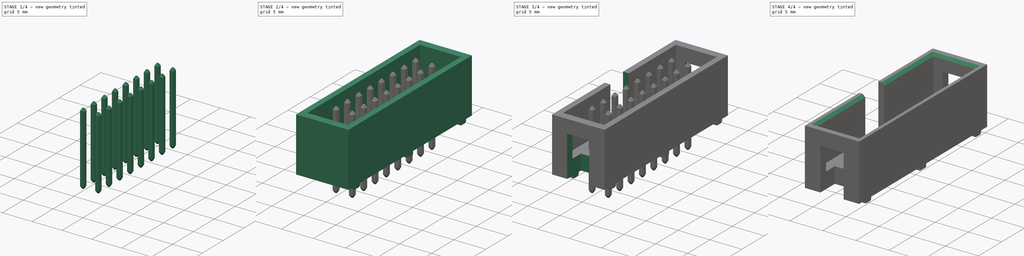
[diagram: build sequence overview — one tinted view per stage of 4, left to right]
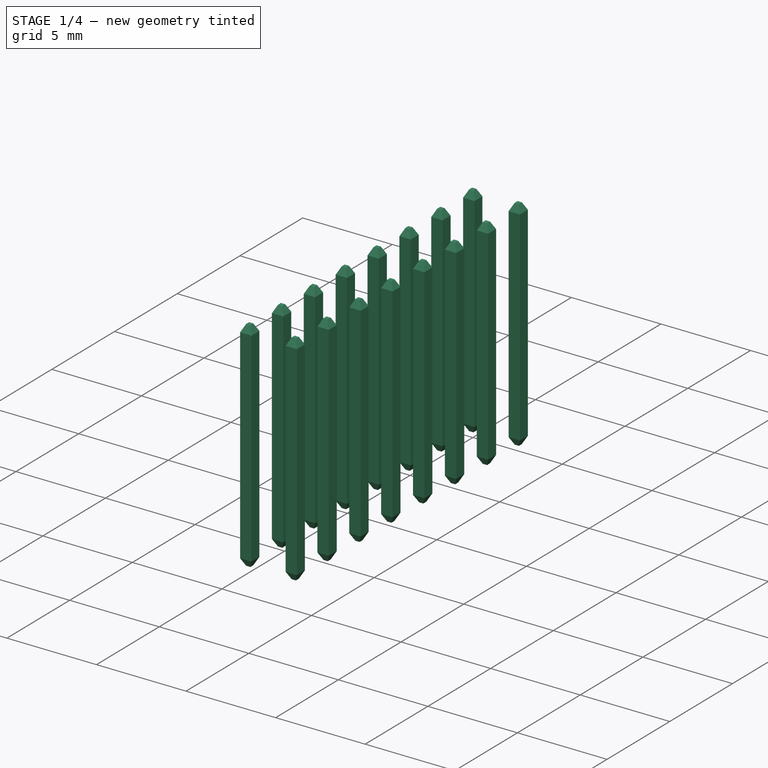
[diagram: stage 1 of 4 — iso view after this stage's code; geometry added in this stage tinted green]
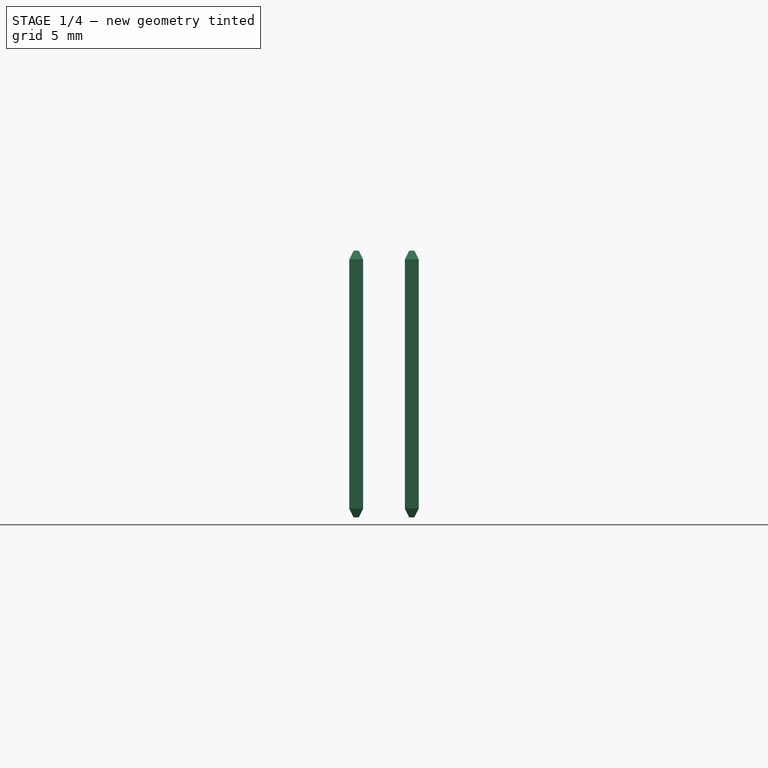
[diagram: stage 1 of 4 — front view after this stage's code; geometry added in this stage tinted green]
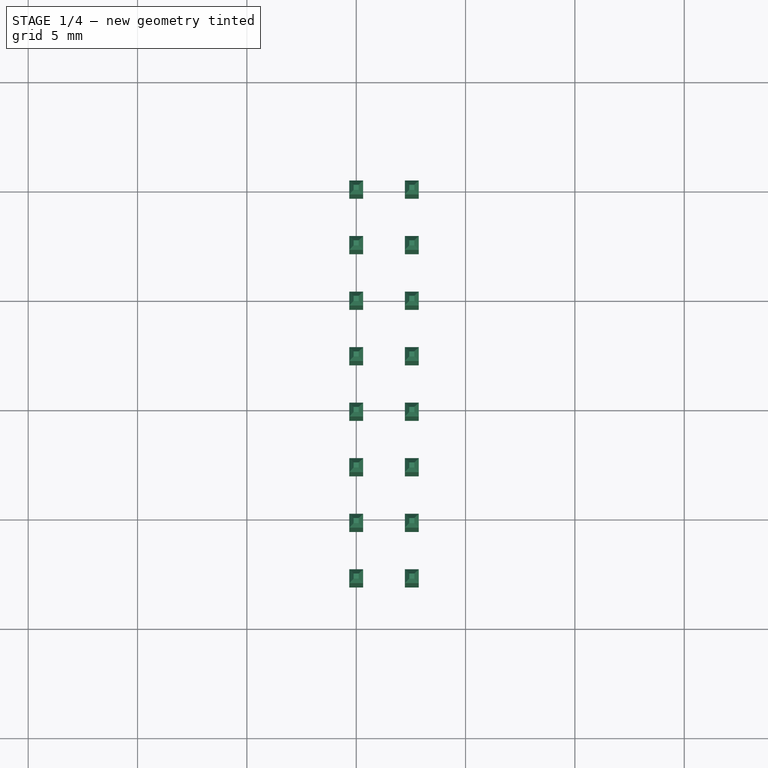
[diagram: stage 1 of 4 — top view after this stage's code; geometry added in this stage tinted green]
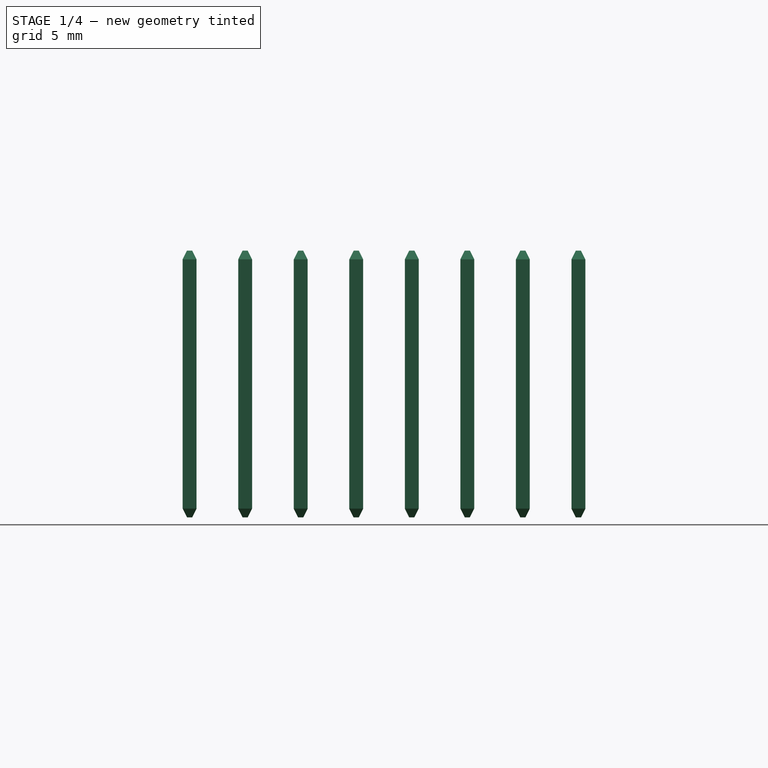
[diagram: stage 1 of 4 — right view after this stage's code; geometry added in this stage tinted green]
FCSTD DOCUMENT  (FreeCAD 1.0R38641 +468 (Git))
Label: XG4C-xx31-1
License: All rights reserved
objects: Sketcher::SketchObject×7, PartDesign::Pocket×5, PartDesign::Plane×3, PartDesign::Body×3, PartDesign::Pad×2, PartDesign::Chamfer×2, Spreadsheet::Sheet×1, PartDesign::Line×1, PartDesign::Mirrored×1, Part::FeaturePython×1, PartDesign::FeatureBase×1, Part::Cut×1
note: 54 computed .brp shape members not serialized (recipe doc carries the construction recipe); baked Part::Feature solids carry a one-line shape summary decoded from their .brp

FEATURE [PartDesign::Body] Body
  AllowCompound = false
  Group = -> [DatumLine,DatumPlane,DatumPlane001,DatumPlane002,Sketch001,Pad,Sketch002,Pocket,Sketch003,Pocket001,Sketch004,Pocket002,Mirrored,Sketch005,Pocket003,Sketch,Pocket004,Chamfer]
  Origin = -> Origin
  Tip = -> Chamfer
FEATURE [Sketcher::SketchObject] Sketch006
  ArcFitTolerance = 1e-06
  AttachmentSupport = -> [XY_Plane001]
  FullyConstrained = true
  MakeInternals = false
  MapMode = 5
  sketch-geometry (4):
    g0: LineSegment StartX=-0.3175 StartY=0.3175 StartZ=0 EndX=-0.3175 EndY=-0.3175 EndZ=0
    g1: LineSegment StartX=-0.3175 StartY=-0.3175 StartZ=0 EndX=0.3175 EndY=-0.3175 EndZ=0
    g2: LineSegment StartX=0.3175 StartY=-0.3175 StartZ=0 EndX=0.3175 EndY=0.3175 EndZ=0
    g3: LineSegment StartX=0.3175 StartY=0.3175 StartZ=0 EndX=-0.3175 EndY=0.3175 EndZ=0
  constraints (11):
    c: Coincident(g0,g1)
    c: Coincident(g1,g2)
    c: Coincident(g2,g3)
    c: Coincident(g3,g0)
    c: Vertical(g0)
    c: Vertical(g2)
    c: Horizontal(g1)
    c: Horizontal(g3)
    c: Equal(g3,g2)
    c: Distance(g3,g3) = 0.635
    c: Symmetric(g2,g0,g-1)
FEATURE [PartDesign::Pad] Pad001
  Direction = (0,0,1)
  Length = 9
  Length2 = 3.2
  Profile = -> Sketch006
  ReferenceAxis = -> Sketch006 [N_Axis]
  Suppressed = false
  Type = 4
FEATURE [PartDesign::Chamfer] Chamfer002
  Angle = 45
  Base = -> Pad001 [Edge7,Edge10,Edge12,Edge4,Edge6,Edge9,Edge11,Edge3]
  BaseFeature = -> Pad001
  ChamferType = 1
  FlipDirection = false
  Size = 0.4
  Size2 = 0.2
  SupportTransform = false
  Suppressed = false
  UseAllEdges = false
FEATURE [PartDesign::Body] Body001
  AllowCompound = false
  Group = -> [Sketch006,Pad001,Chamfer002]
  Origin = -> Origin001
  Tip = -> Chamfer002
FEATURE [Part::FeaturePython] Array  label="Pins"  # Draft array (typed FeaturePython)
  Angle = 360
  ArrayType = 0
  Axis = (0,0,1)
  Base = -> Body001
  Center = (0,0,0)
  Count = 16
  Fuse = false
  IntervalAxis = (0,0,0)
  IntervalX = (2.54,0,0)
  IntervalY = (0,-2.54,0)
  IntervalZ = (0,0,100)
  NumberCircles = 3
  NumberPolar = 5
  NumberX = 2
  NumberY = 8
  NumberZ = 1
  RadialDistance = 50
  Symmetry = 1
  TangentialDistance = 25
  expr: .IntervalX.x = <<Master>>.pin_pitch
  expr: .IntervalY.y = -<<Master>>.pin_pitch
  expr: NumberY = <<Master>>.pins_row
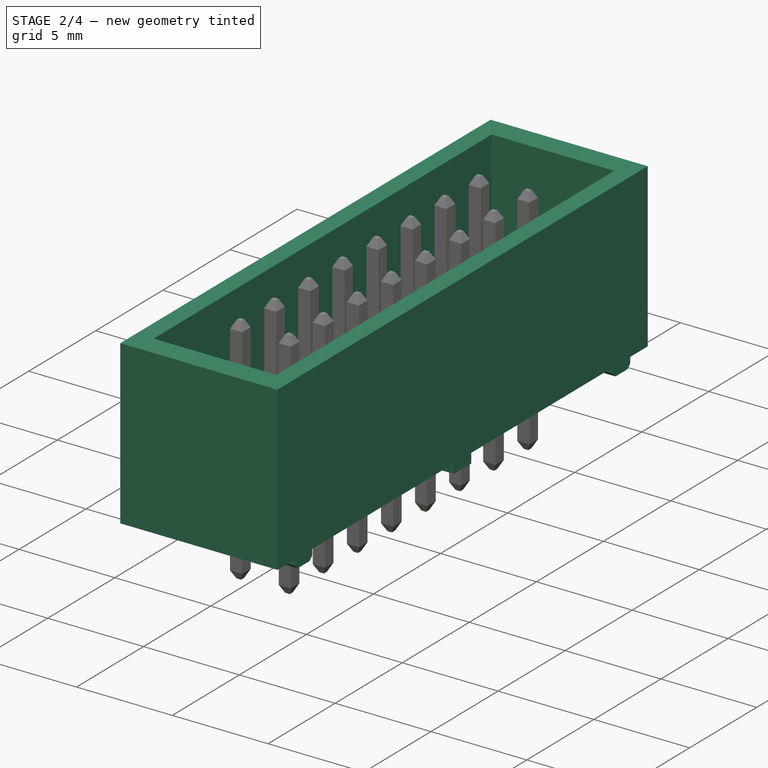
[diagram: stage 2 of 4 — iso view after this stage's code; geometry added in this stage tinted green]
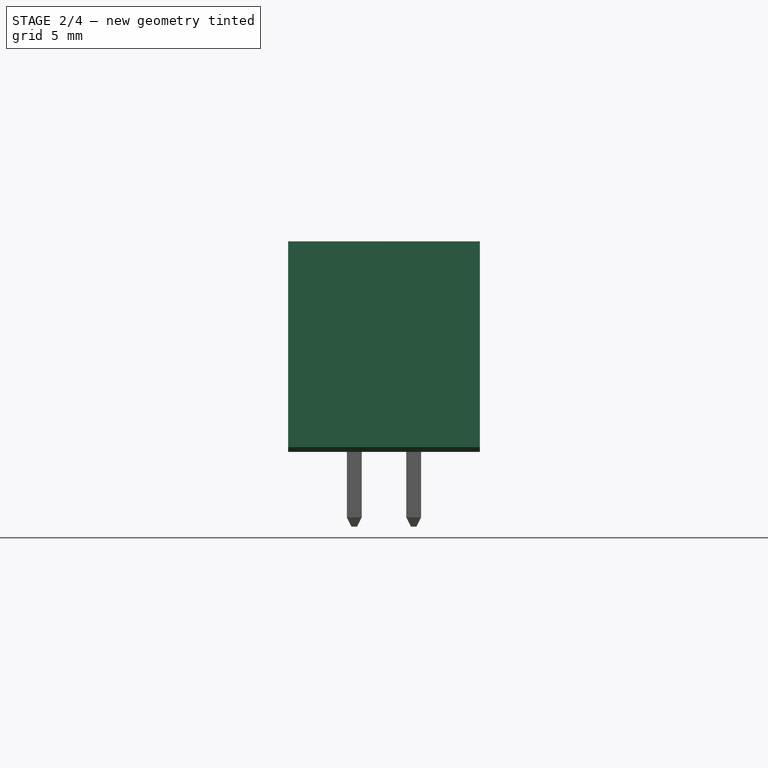
[diagram: stage 2 of 4 — front view after this stage's code; geometry added in this stage tinted green]
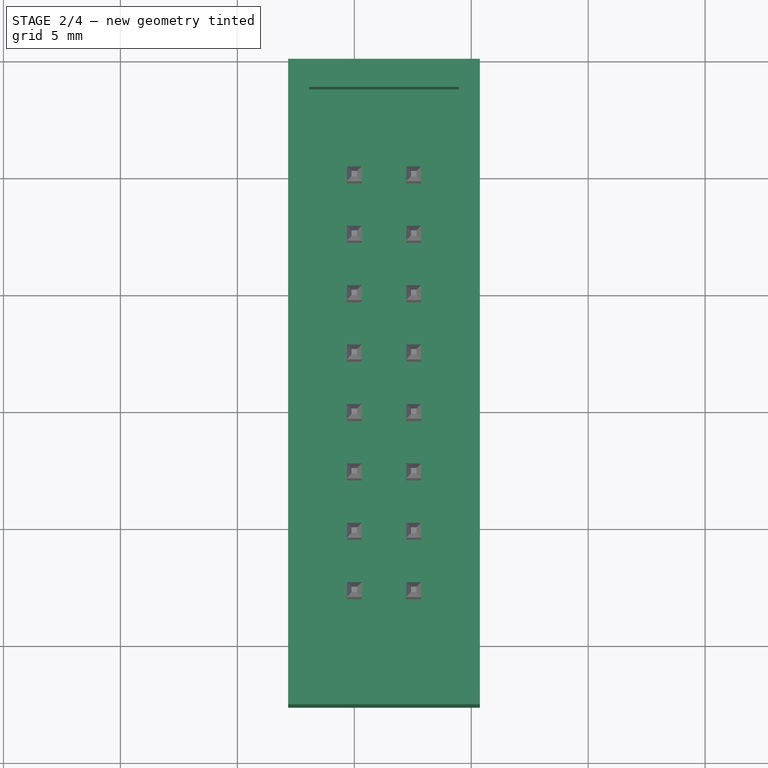
[diagram: stage 2 of 4 — top view after this stage's code; geometry added in this stage tinted green]
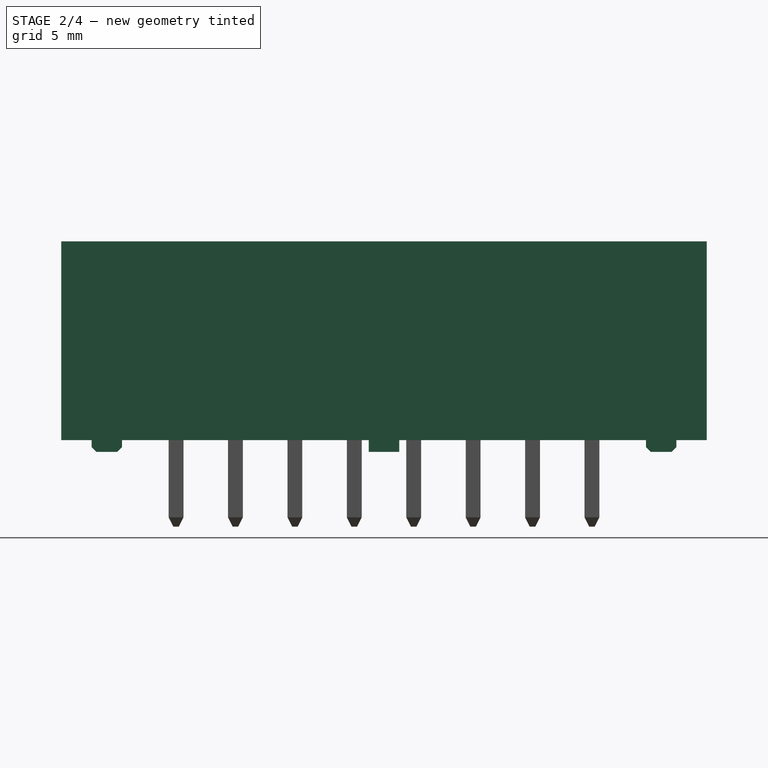
[diagram: stage 2 of 4 — right view after this stage's code; geometry added in this stage tinted green]
FEATURE [Spreadsheet::Sheet] Spreadsheet  label="Master"
  cells = A1='Constants; A2='pins; B2(pins)=16; C2='Number of pins: 10, 14, 16, 20, 26, 30, 34, 40, 50, 60, 64; A3='pin_pitch; B3(pin_pitch)==2.54 mm; C3='Pin pitch; A5='height; B5(height)==9 mm; C5='Height of housing; A6='width; B6(width)==8.2 mm; C6='Width of housing; A8='Calculated; A9='pins row; B9(pins_row)==pins / 2; C9='Pins per row; A10='length mod; B10(len_mod)==pins == 16 ? -1 : (pins == 26 ? -1 : 0); A11='length total; B11(length_tot)==ceil(length_pin * 10) / 10 + 9.8 mm; C11='Dim A: Length of housing; A12='length opening; B12(length_open)==length_tot - 2.5 mm - len_mod * 0.1 mm; C12='Dim B: Length of opening; A13='length pin; B13(length_pin)==(pins_row - 1) * pin_pitch; C13='Dim C: Total with of pins; A15='center; B15(center)==length_pin / 2; C15='Center offset for pin 1 at origin
FEATURE [PartDesign::Line] DatumLine
  AttacherType = Attacher::AttachEngineLine
  Length = 20
  MapMode = 18
  Placement = pos=(1.27,-8.89,0) rot=(0,0,1;0rad)
  ResizeMode = 0
  expr: .Placement.Base.x = <<Master>>.pin_pitch / 2
  expr: .Placement.Base.y = -<<Master>>.center
FEATURE [PartDesign::Plane] DatumPlane
  AttachmentOffset = pos=(0,0,1.27) rot=(0,0,1;0rad)
  AttachmentSupport = -> [YZ_Plane]
  Length = 60
  MapMode = 5
  Placement = pos=(1.27,0,0) rot=(0.57735,0.57735,0.57735;2.0944rad)
  ResizeMode = 0
  Width = 60
  expr: .AttachmentOffset.Base.z = <<Master>>.pin_pitch / 2
FEATURE [PartDesign::Plane] DatumPlane001
  AttachmentOffset = pos=(0,0,8.89) rot=(0,0,1;0rad)
  AttachmentSupport = -> [XZ_Plane]
  Length = 60
  MapMode = 5
  Placement = pos=(0,-8.89,2e-15) rot=(1,0,0;1.5708rad)
  ResizeMode = 0
  Width = 60
  expr: .AttachmentOffset.Base.z = <<Master>>.center
FEATURE [PartDesign::Plane] DatumPlane002
  AttachmentOffset = pos=(0,0,9) rot=(0,0,1;0rad)
  AttachmentSupport = -> [XY_Plane]
  Length = 60
  MapMode = 5
  Placement = pos=(0,0,9) rot=(0,0,1;0rad)
  ResizeMode = 0
  Width = 60
  expr: .AttachmentOffset.Base.z = <<Master>>.height
FEATURE [Sketcher::SketchObject] Sketch001
  ArcFitTolerance = 0
  AttachmentSupport = -> [DatumPlane]
  ExternalGeometry = -> [DatumLine]
  FullyConstrained = true
  MakeInternals = false
  MapMode = 5
  Placement = pos=(1.27,0,0) rot=(0.57735,0.57735,0.57735;2.0944rad)
  expr: Constraints[41] = <<Master>>.length_tot
  expr: Constraints[42] = <<Master>>.length_tot - 1.3 mm * 2
  expr: Constraints[44] = <<Master>>.length_tot - 1.3 mm * 4
  expr: Constraints[46] = <<Master>>.height
  sketch-geometry (31):
    g0: LineSegment StartX=-22.69 StartY=9 StartZ=0 EndX=-22.69 EndY=0.5 EndZ=0
    g1: LineSegment StartX=-22.69 StartY=0.5 StartZ=0 EndX=-21.39 EndY=0.5 EndZ=0
    g2: LineSegment StartX=4.91 StartY=0.5 StartZ=0 EndX=4.91 EndY=9 EndZ=0
    g3: LineSegment StartX=4.91 StartY=9 StartZ=0 EndX=-22.69 EndY=9 EndZ=0
    g4: LineSegment StartX=-21.39 StartY=0.5 StartZ=0 EndX=-21.39 EndY=0.2 EndZ=0
    g5: LineSegment StartX=-21.19 StartY=0 StartZ=0 EndX=-20.29 EndY=0 EndZ=0
    g6: LineSegment StartX=-20.09 StartY=0.2 StartZ=0 EndX=-20.09 EndY=0.5 EndZ=0
    g7: LineSegment StartX=-20.09 StartY=0.5 StartZ=0 EndX=-9.54 EndY=0.5 EndZ=0
    g8: LineSegment StartX=-9.54 StartY=0.5 StartZ=0 EndX=-9.54 EndY=0 EndZ=0
    g9: LineSegment StartX=-9.54 StartY=0 StartZ=0 EndX=-8.24 EndY=0 EndZ=0
    g10: LineSegment StartX=-8.24 StartY=0 StartZ=0 EndX=-8.24 EndY=0.5 EndZ=0
    g11: LineSegment StartX=2.31 StartY=0.5 StartZ=0 EndX=2.31 EndY=0.2 EndZ=0
    g12: LineSegment StartX=2.51 StartY=0 StartZ=0 EndX=3.41 EndY=0 EndZ=0
    g13: LineSegment StartX=3.61 StartY=0.2 StartZ=0 EndX=3.61 EndY=0.5 EndZ=0
    g14: LineSegment StartX=3.61 StartY=0.5 StartZ=0 EndX=4.91 EndY=0.5 EndZ=0
    g15: LineSegment StartX=-8.24 StartY=0.5 StartZ=0 EndX=2.31 EndY=0.5 EndZ=0
    g16: LineSegment [constr] StartX=-21.39 StartY=0.5 StartZ=0 EndX=-20.09 EndY=0.5 EndZ=0
    g17: LineSegment [constr] StartX=-9.54 StartY=0.5 StartZ=0 EndX=-8.24 EndY=0.5 EndZ=0
    g18: LineSegment [constr] StartX=2.31 StartY=0.5 StartZ=0 EndX=3.61 EndY=0.5 EndZ=0
    g19: ArcOfCircle [constr] CenterX=-21.19 CenterY=0.2 CenterZ=0 NormalX=0 NormalY=0 NormalZ=1 AngleXU=0 Radius=0.2 StartAngle=3.14159 EndAngle=4.71239
    g20: GeomPoint [constr] X=-21.39 Y=0 Z=0
    g21: LineSegment StartX=-21.39 StartY=0.2 StartZ=0 EndX=-21.19 EndY=0 EndZ=0
    g22: ArcOfCircle [constr] CenterX=-20.29 CenterY=0.2 CenterZ=0 NormalX=0 NormalY=0 NormalZ=1 AngleXU=0 Radius=0.2 StartAngle=4.71239 EndAngle=6.28319
    g23: GeomPoint [constr] X=-20.09 Y=0 Z=0
    g24: LineSegment StartX=-20.29 StartY=0 StartZ=0 EndX=-20.09 EndY=0.2 EndZ=0
    g25: ArcOfCircle [constr] CenterX=2.51 CenterY=0.2 CenterZ=0 NormalX=0 NormalY=0 NormalZ=1 AngleXU=0 Radius=0.2 StartAngle=3.14159 EndAngle=4.71239
    g26: GeomPoint [constr] X=2.31 Y=0 Z=0
    g27: LineSegment StartX=2.31 StartY=0.2 StartZ=0 EndX=2.51 EndY=0 EndZ=0
    g28: ArcOfCircle [constr] CenterX=3.41 CenterY=0.2 CenterZ=0 NormalX=0 NormalY=0 NormalZ=1 AngleXU=0 Radius=0.2 StartAngle=4.71239 EndAngle=6.28319
    g29: GeomPoint [constr] X=3.61 Y=0 Z=0
    g30: LineSegment StartX=3.41 StartY=0 StartZ=0 EndX=3.61 EndY=0.2 EndZ=0
  constraints (77):
    c: Vertical(g0)
    c: Coincident(g0,g1)
    c: Horizontal(g1)
    c: Coincident(g14,g2)
    c: Vertical(g2)
    c: Coincident(g2,g3)
    c: Coincident(g3,g0)
    c: Vertical(g4)
    c: Vertical(g6)
    c: Coincident(g1,g4)
    c: Coincident(g7,g6)
    c: Coincident(g8,g9)
    c: Coincident(g9,g10)
    c: PointOnObject(g26,g-1)
    c: PointOnObject(g29,g-1)
    c: Vertical(g13)
    c: Vertical(g11)
    c: Coincident(g15,g11)
    c: Coincident(g14,g13)
    c: Coincident(g7,g8)
    c: Coincident(g15,g10)
    c: Vertical(g8)
    c: Vertical(g10)
    c: PointOnObject(g9,g-1)
    c: DistanceX(g9) = 1.3
    c: PointOnObject(g23,g-1)
    c: PointOnObject(g20,g-1)
    c: Coincident(g16,g1)
    c: Coincident(g16,g6)
    c: Horizontal(g16)
    c: Horizontal(g7)
    c: Coincident(g17,g7)
    c: Coincident(g17,g10)
    c: Horizontal(g17)
    c: Horizontal(g15)
    c: Coincident(g18,g11)
    c: Coincident(g18,g13)
    c: Horizontal(g18)
    c: Horizontal(g14)
    c: Equal(g1,g14)
    c: Symmetric(g0,g2,g-3)
    c: DistanceX(g3,g3) = 27.6
    c: DistanceX(g20,g29) = 25
    c: Equal(g16,g18)
    c: DistanceX(g6,g11) = 22.4
    c: Equal(g7,g15)
    c: DistanceY(g2) = 9
    c: DistanceY(g29,g2) = 0.5
    c: PointOnObject(g8,g-1)
    c: PointOnObject(g20,g4)
    c: PointOnObject(g20,g5)
    c: Tangent(g4,g19) = -1.5708
    c: Tangent(g5,g19) = -1.5708
    c: Coincident(g21,g4)
    c: Coincident(g21,g5)
    c: Radius(g19) = 0.2
    c: PointOnObject(g23,g6)
    c: PointOnObject(g23,g5)
    c: Tangent(g6,g22) = -1.5708
    c: Tangent(g5,g22) = -1.5708
    c: Coincident(g24,g6)
    c: Coincident(g24,g5)
    c: PointOnObject(g26,g12)
    c: PointOnObject(g26,g11)
    c: Tangent(g12,g25) = -1.5708
    c: Tangent(g11,g25) = -1.5708
    c: Coincident(g27,g12)
    c: Coincident(g27,g11)
    c: PointOnObject(g29,g13)
    c: PointOnObject(g29,g12)
    c: Tangent(g13,g28) = -1.5708
    c: Tangent(g12,g28) = -1.5708
    c: Coincident(g30,g13)
    c: Coincident(g30,g12)
    c: Equal(g25,g28)
    c: Equal(g25,g22)
    c: Equal(g19,g22)
FEATURE [PartDesign::Pad] Pad
  Direction = (1,0,0)
  Length = 8.2
  Length2 = 10
  Midplane = true
  Placement = pos=(1.27,0,0) rot=(0.57735,0.57735,0.57735;2.0944rad)
  Profile = -> Sketch001
  ReferenceAxis = -> Sketch001 [N_Axis]
  Suppressed = false
  Type = 0
  expr: Length = <<Master>>.width
FEATURE [Sketcher::SketchObject] Sketch002
  ArcFitTolerance = 0
  AttachmentSupport = -> [DatumPlane002]
  ExternalGeometry = -> [DatumLine]
  FullyConstrained = true
  MakeInternals = false
  MapMode = 5
  Placement = pos=(0,0,9) rot=(0,0,1;0rad)
  expr: Constraints[9] = <<Master>>.length_open
  sketch-geometry (4):
    g0: LineSegment StartX=4.47 StartY=-21.49 StartZ=0 EndX=4.47 EndY=3.71 EndZ=0
    g1: LineSegment StartX=4.47 StartY=3.71 StartZ=0 EndX=-1.93 EndY=3.71 EndZ=0
    g2: LineSegment StartX=-1.93 StartY=3.71 StartZ=0 EndX=-1.93 EndY=-21.49 EndZ=0
    g3: LineSegment StartX=-1.93 StartY=-21.49 StartZ=0 EndX=4.47 EndY=-21.49 EndZ=0
  constraints (11):
    c: Coincident(g0,g1)
    c: Coincident(g1,g2)
    c: Coincident(g2,g3)
    c: Coincident(g3,g0)
    c: Vertical(g0)
    c: Vertical(g2)
    c: Horizontal(g1)
    c: Horizontal(g3)
    c: DistanceX(g3,g3) = 6.4
    c: DistanceY(g0,g0) = 25.2
    c: Symmetric(g0,g2,g-3)
FEATURE [PartDesign::Pocket] Pocket
  BaseFeature = -> Pad
  Direction = (0,0,-1)
  Length = 6.1
  Length2 = 5
  Placement = pos=(1.27,0,0) rot=(0.57735,0.57735,0.57735;2.0944rad)
  Profile = -> Sketch002
  ReferenceAxis = -> Sketch002 [N_Axis]
  Suppressed = false
  Type = 0
FEATURE [PartDesign::FeatureBase] Clone
  BaseFeature = -> Array
  Suppressed = false
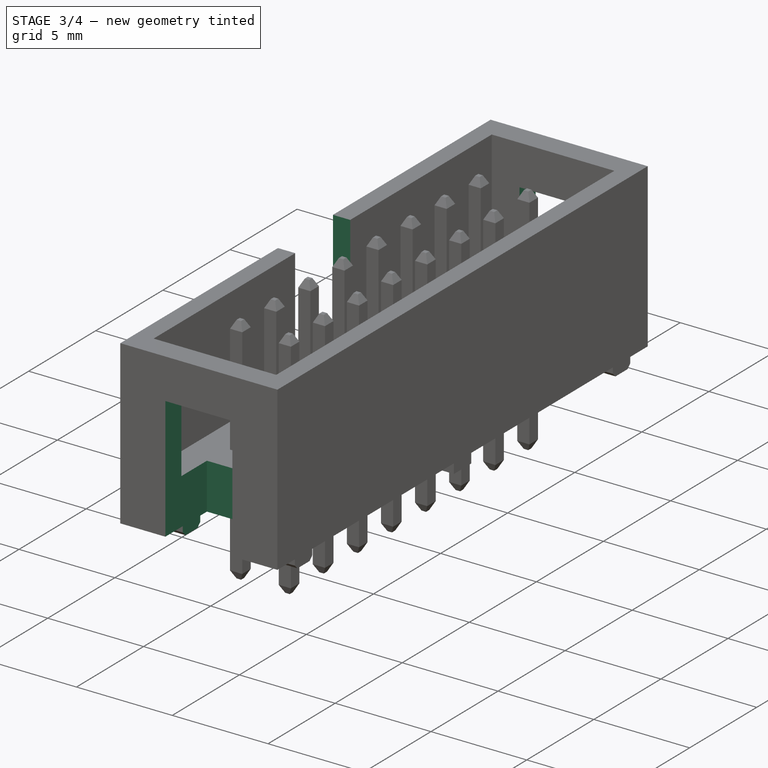
[diagram: stage 3 of 4 — iso view after this stage's code; geometry added in this stage tinted green]
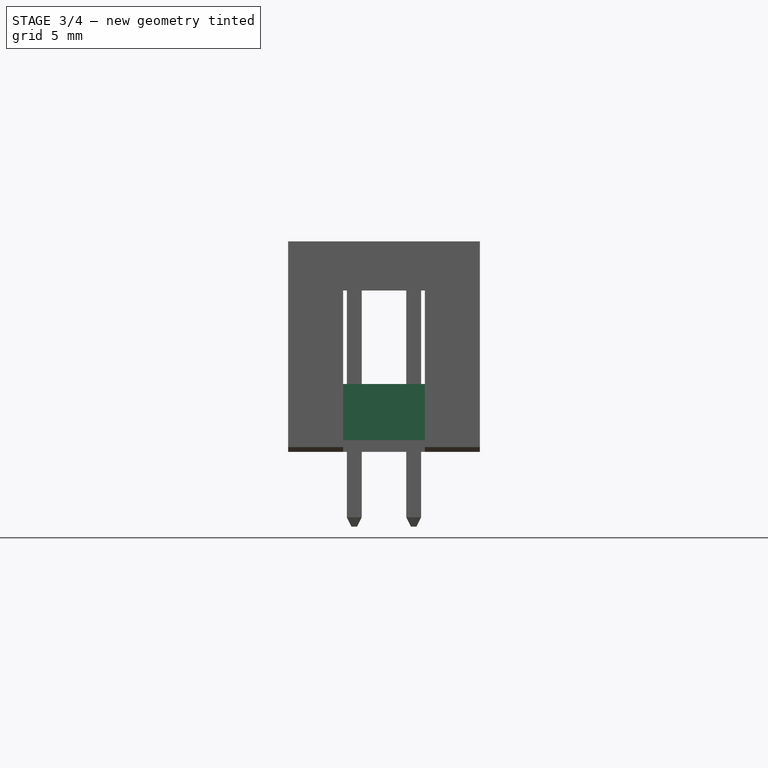
[diagram: stage 3 of 4 — front view after this stage's code; geometry added in this stage tinted green]
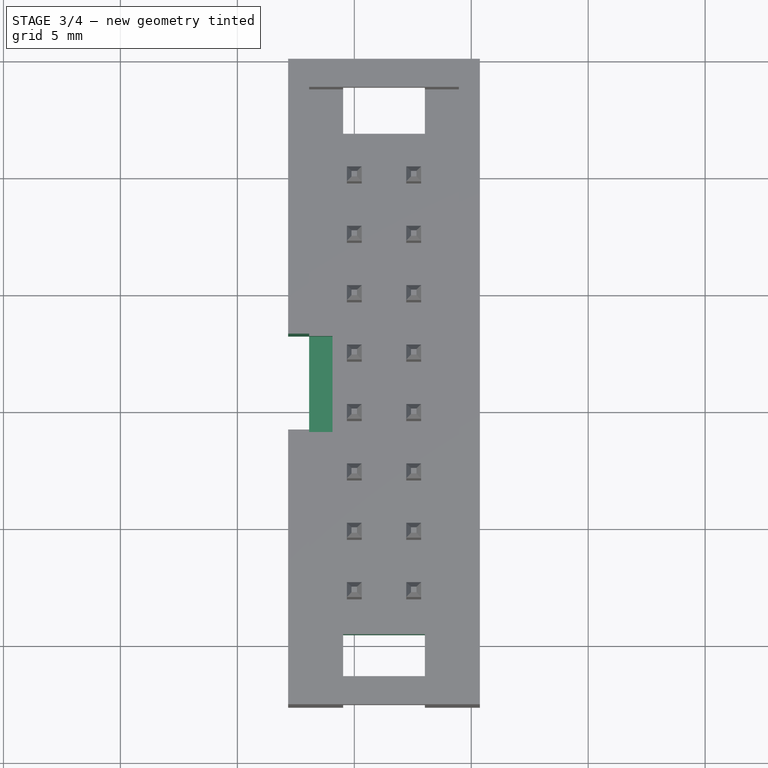
[diagram: stage 3 of 4 — top view after this stage's code; geometry added in this stage tinted green]
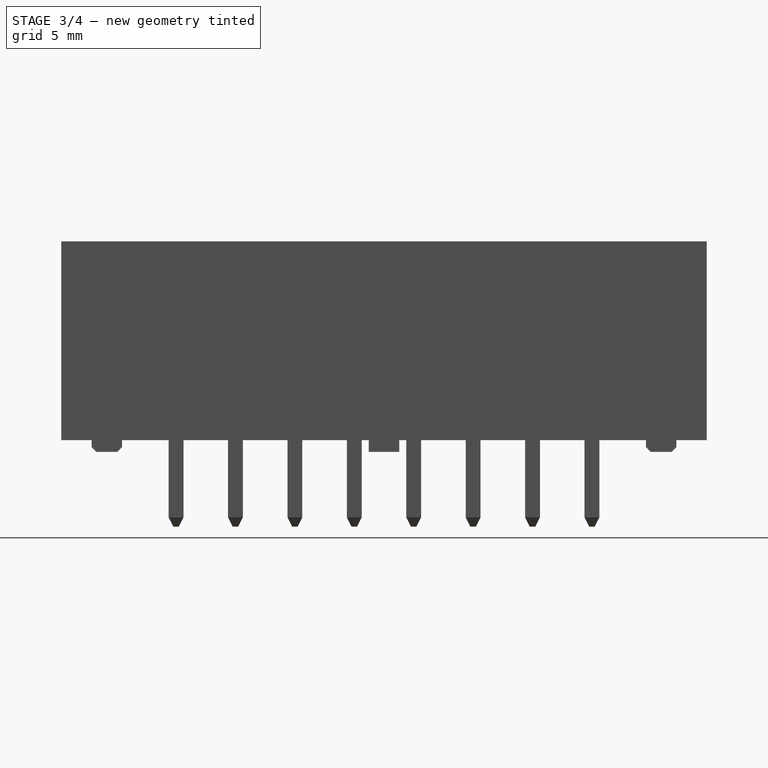
[diagram: stage 3 of 4 — right view after this stage's code; geometry added in this stage tinted green]
FEATURE [Sketcher::SketchObject] Sketch003
  ArcFitTolerance = 0
  AttachmentSupport = -> [DatumPlane002]
  ExternalGeometry = -> [DatumLine]
  FullyConstrained = true
  MakeInternals = false
  MapMode = 5
  Placement = pos=(0,0,9) rot=(0,0,1;0rad)
  expr: Constraints[12] = <<Master>>.width / 2
  sketch-geometry (5):
    g0: LineSegment StartX=-2.83 StartY=-6.84 StartZ=0 EndX=-2.83 EndY=-10.94 EndZ=0
    g1: LineSegment StartX=-2.83 StartY=-10.94 StartZ=0 EndX=-0.93 EndY=-10.94 EndZ=0
    g2: LineSegment StartX=-0.93 StartY=-10.94 StartZ=0 EndX=-0.93 EndY=-6.84 EndZ=0
    g3: LineSegment StartX=-0.93 StartY=-6.84 StartZ=0 EndX=-2.83 EndY=-6.84 EndZ=0
    g4: LineSegment [constr] StartX=1.27 StartY=-8.89 StartZ=0 EndX=-2.83 EndY=-8.89 EndZ=0
  constraints (14):
    c: Coincident(g0,g1)
    c: Coincident(g1,g2)
    c: Coincident(g2,g3)
    c: Coincident(g3,g0)
    c: Vertical(g0)
    c: Vertical(g2)
    c: Horizontal(g1)
    c: Horizontal(g3)
    c: DistanceY(g0,g0) = 4.1
    c: Coincident(g4,g-3)
    c: PointOnObject(g4,g0)
    c: Symmetric(g0,g0,g4)
    c: DistanceX(g4,g4) = 4.1
    c: DistanceX(g2,g4) = 2.2
FEATURE [PartDesign::Pocket] Pocket001
  BaseFeature = -> Pocket
  Direction = (0,0,-1)
  Length = 7.5
  Length2 = 5
  Placement = pos=(1.27,0,0) rot=(0.57735,0.57735,0.57735;2.0944rad)
  Profile = -> Sketch003
  ReferenceAxis = -> Sketch003 [N_Axis]
  Suppressed = false
  Type = 0
FEATURE [Sketcher::SketchObject] Sketch004
  ArcFitTolerance = 0
  AttachmentSupport = -> [XY_Plane]
  ExternalGeometry = -> [DatumLine]
  FullyConstrained = true
  MakeInternals = false
  MapMode = 5
  expr: Constraints[12] = <<Master>>.length_tot / 2
  expr: Constraints[13] = <<Master>>.length_tot / 2 - 3.1 mm
  sketch-geometry (5):
    g0: LineSegment StartX=-0.48 StartY=4.91 StartZ=0 EndX=-0.48 EndY=1.81 EndZ=0
    g1: LineSegment StartX=-0.48 StartY=1.81 StartZ=0 EndX=3.02 EndY=1.81 EndZ=0
    g2: LineSegment StartX=3.02 StartY=1.81 StartZ=0 EndX=3.02 EndY=4.91 EndZ=0
    g3: LineSegment StartX=3.02 StartY=4.91 StartZ=0 EndX=-0.48 EndY=4.91 EndZ=0
    g4: LineSegment [constr] StartX=1.27 StartY=-8.89 StartZ=0 EndX=1.27 EndY=4.91 EndZ=0
  constraints (14):
    c: Coincident(g0,g1)
    c: Coincident(g1,g2)
    c: Coincident(g2,g3)
    c: Coincident(g3,g0)
    c: Vertical(g0)
    c: Vertical(g2)
    c: Horizontal(g1)
    c: Horizontal(g3)
    c: Symmetric(g0,g2,g4)
    c: DistanceX(g3,g3) = 3.5
    c: PointOnObject(g4,g3)
    c: Coincident(g-3,g4)
    c: DistanceY(g4,g4) = 13.8
    c: DistanceY(g4,g1) = 10.7
FEATURE [PartDesign::Pocket] Pocket002
  BaseFeature = -> Pocket001
  Direction = (0,0,-1)
  Length = 6.9
  Length2 = 5
  Placement = pos=(1.27,0,0) rot=(0.57735,0.57735,0.57735;2.0944rad)
  Profile = -> Sketch004
  ReferenceAxis = -> Sketch004 [N_Axis]
  Reversed = true
  Suppressed = false
  Type = 0
FEATURE [PartDesign::Mirrored] Mirrored
  BaseFeature = -> Pocket002
  MirrorPlane = -> DatumPlane001
  Originals = -> [Pocket002]
  Placement = pos=(1.27,0,0) rot=(0.57735,0.57735,0.57735;2.0944rad)
  Suppressed = false
  TransformMode = 0
FEATURE [Sketcher::SketchObject] Sketch005
  ArcFitTolerance = 0
  AttachmentOffset = pos=(0,0,-4.1) rot=(0,0,1;0rad)
  AttachmentSupport = -> [DatumPlane]
  ExternalGeometry = -> [DatumLine]
  FullyConstrained = true
  MakeInternals = false
  MapMode = 5
  Placement = pos=(-2.83,0,0) rot=(0.57735,0.57735,0.57735;2.0944rad)
  expr: .AttachmentOffset.Base.z = -<<Master>>.width / 2
  expr: Constraints[9] = <<Master>>.length_tot - 1.3 mm * 4
  sketch-geometry (4):
    g0: LineSegment StartX=-20.09 StartY=1.5 StartZ=0 EndX=2.31 EndY=1.5 EndZ=0
    g1: LineSegment StartX=2.31 StartY=1.5 StartZ=0 EndX=2.31 EndY=0 EndZ=0
    g2: LineSegment StartX=2.31 StartY=0 StartZ=0 EndX=-20.09 EndY=0 EndZ=0
    g3: LineSegment StartX=-20.09 StartY=0 StartZ=0 EndX=-20.09 EndY=1.5 EndZ=0
  constraints (11):
    c: Coincident(g0,g1)
    c: Coincident(g1,g2)
    c: Coincident(g2,g3)
    c: Coincident(g3,g0)
    c: Horizontal(g2)
    c: Vertical(g1)
    c: Vertical(g3)
    c: Symmetric(g0,g0,g-3)
    c: PointOnObject(g1,g-1)
    c: DistanceX(g2,g2) = 22.4
    c: Distance(g3,g3) = 1.5
FEATURE [PartDesign::Pocket] Pocket003
  BaseFeature = -> Mirrored
  Direction = (-1,0,0)
  Length = 0.9
  Length2 = 5
  Placement = pos=(1.27,0,0) rot=(0.57735,0.57735,0.57735;2.0944rad)
  Profile = -> Sketch005
  ReferenceAxis = -> Sketch005 [N_Axis]
  Reversed = true
  Suppressed = false
  Type = 0
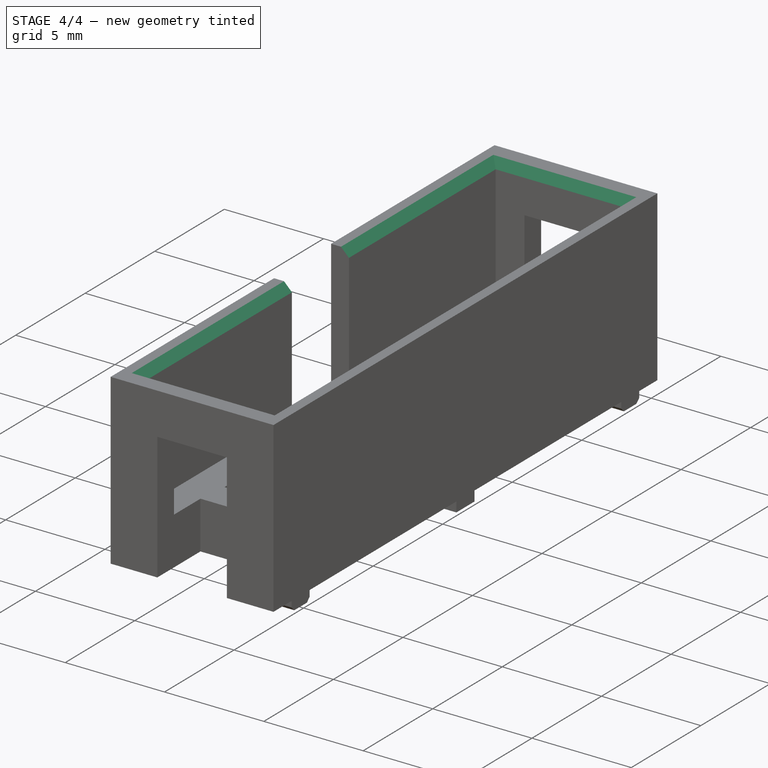
[diagram: stage 4 of 4 — iso view after this stage's code; geometry added in this stage tinted green]
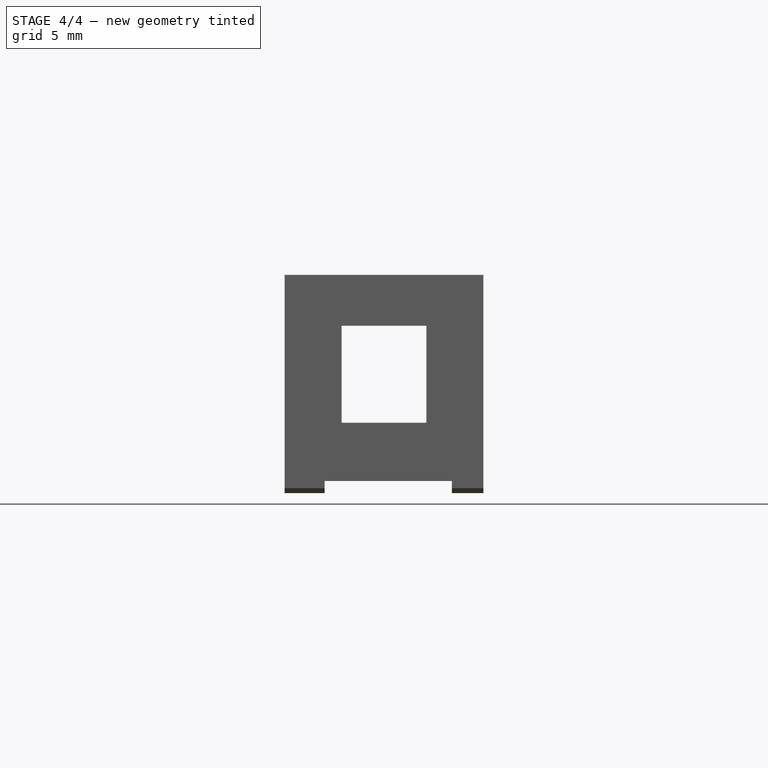
[diagram: stage 4 of 4 — front view after this stage's code; geometry added in this stage tinted green]
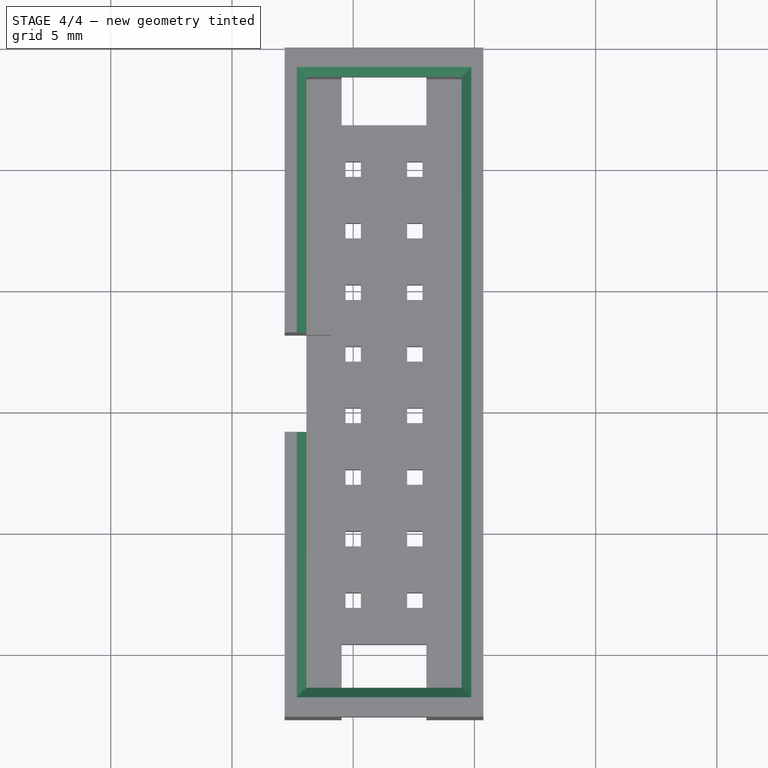
[diagram: stage 4 of 4 — top view after this stage's code; geometry added in this stage tinted green]
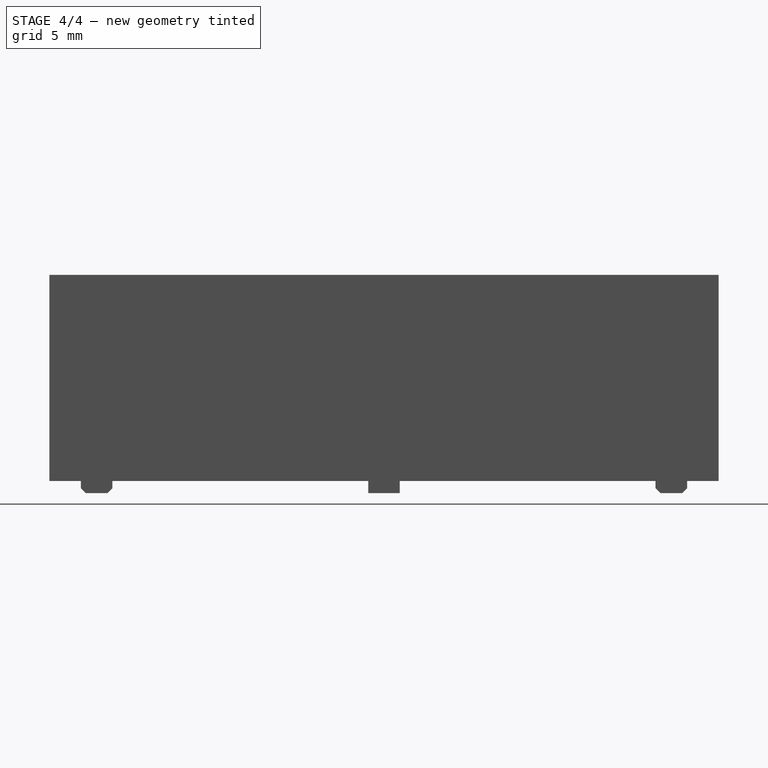
[diagram: stage 4 of 4 — right view after this stage's code; geometry added in this stage tinted green]
FEATURE [Sketcher::SketchObject] Sketch
  ArcFitTolerance = 1e-06
  AttachmentSupport = -> [XY_Plane]
  ExternalGeometry = -> [DatumLine]
  FullyConstrained = true
  MakeInternals = false
  MapMode = 5
  expr: Constraints[12] = <<Master>>.width
  expr: Constraints[15] = <<Master>>.length_tot - 1.3 mm * 2
  sketch-geometry (6):
    g0: LineSegment StartX=-1.18 StartY=3.61 StartZ=0 EndX=-1.18 EndY=-21.39 EndZ=0
    g1: LineSegment StartX=-1.18 StartY=-21.39 StartZ=0 EndX=4.07 EndY=-21.39 EndZ=0
    g2: LineSegment StartX=4.07 StartY=-21.39 StartZ=0 EndX=4.07 EndY=3.61 EndZ=0
    g3: LineSegment StartX=4.07 StartY=3.61 StartZ=0 EndX=-1.18 EndY=3.61 EndZ=0
    g4: LineSegment [constr] StartX=1.27 StartY=3.61 StartZ=0 EndX=1.27 EndY=-21.39 EndZ=0
    g5: LineSegment [constr] StartX=5.37 StartY=-8.89 StartZ=0 EndX=-2.83 EndY=-8.89 EndZ=0
  constraints (18):
    c: Coincident(g0,g1)
    c: Coincident(g1,g2)
    c: Coincident(g2,g3)
    c: Coincident(g3,g0)
    c: Vertical(g0)
    c: Vertical(g2)
    c: Horizontal(g1)
    c: Horizontal(g3)
    c: Vertical(g4)
    c: PointOnObject(g4,g3)
    c: PointOnObject(g4,g1)
    c: Horizontal(g5)
    c: Distance(g5,g5) = 8.2
    c: Symmetric(g5,g5,g-3)
    c: Symmetric(g4,g4,g-3)
    c: DistanceY(g0,g0) = 25
    c: DistanceX(g5,g0) = 1.65
    c: DistanceX(g1,g5) = 1.3
FEATURE [PartDesign::Pocket] Pocket004
  BaseFeature = -> Pocket003
  Direction = (0,0,-1)
  Length = 0.5
  Length2 = 5
  Placement = pos=(1.27,0,0) rot=(0.57735,0.57735,0.57735;2.0944rad)
  Profile = -> Sketch
  ReferenceAxis = -> Sketch [N_Axis]
  Refine = true
  Reversed = true
  Suppressed = false
  Type = 0
FEATURE [PartDesign::Chamfer] Chamfer
  Angle = 45
  Base = -> Pocket004 [Edge50,Edge51,Edge52,Edge54,Edge53]
  BaseFeature = -> Pocket004
  ChamferType = 0
  FlipDirection = false
  Placement = pos=(1.27,0,0) rot=(0.57735,0.57735,0.57735;2.0944rad)
  Size = 0.4
  Size2 = 1
  SupportTransform = false
  Suppressed = false
  UseAllEdges = false
FEATURE [PartDesign::Body] Body002
  AllowCompound = false
  Group = -> [Clone]
  Origin = -> Origin002
  Tip = -> Clone
FEATURE [Part::Cut] Cut
  Base = -> Body
  Tool = -> Body002
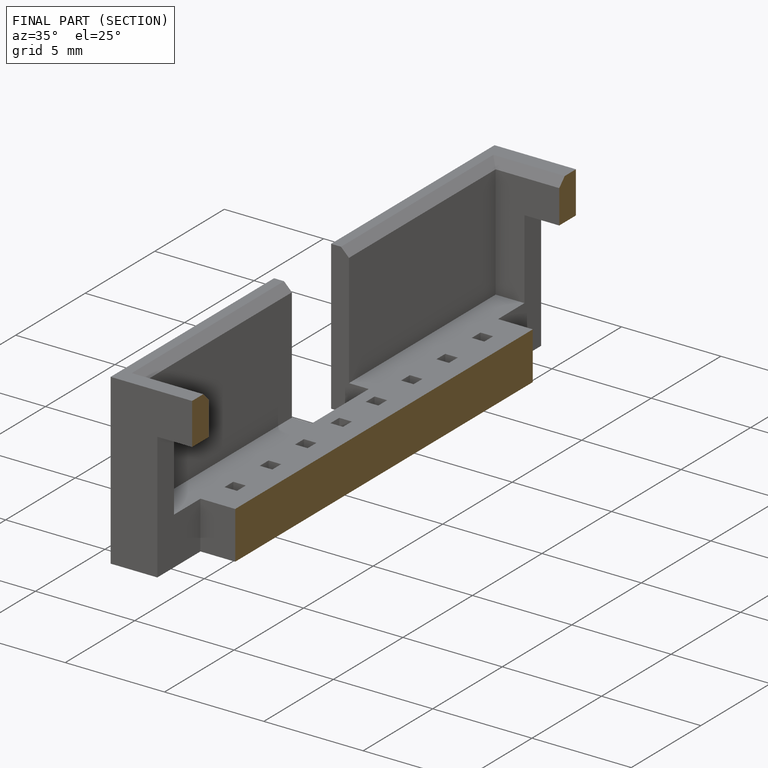
[diagram: finished part — half-section view (interior)]
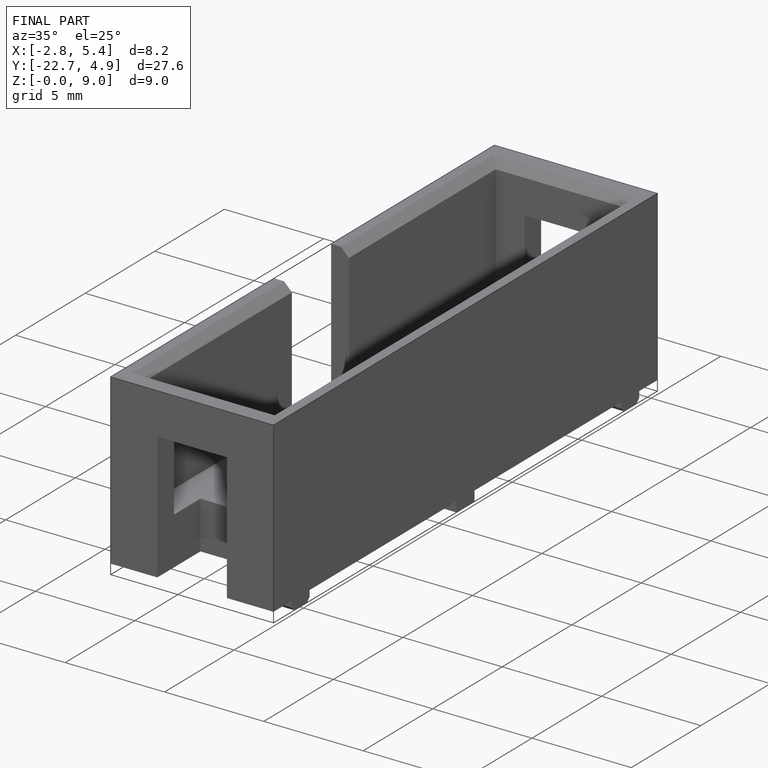
[diagram: finished part — iso view with bounding-box wireframe]
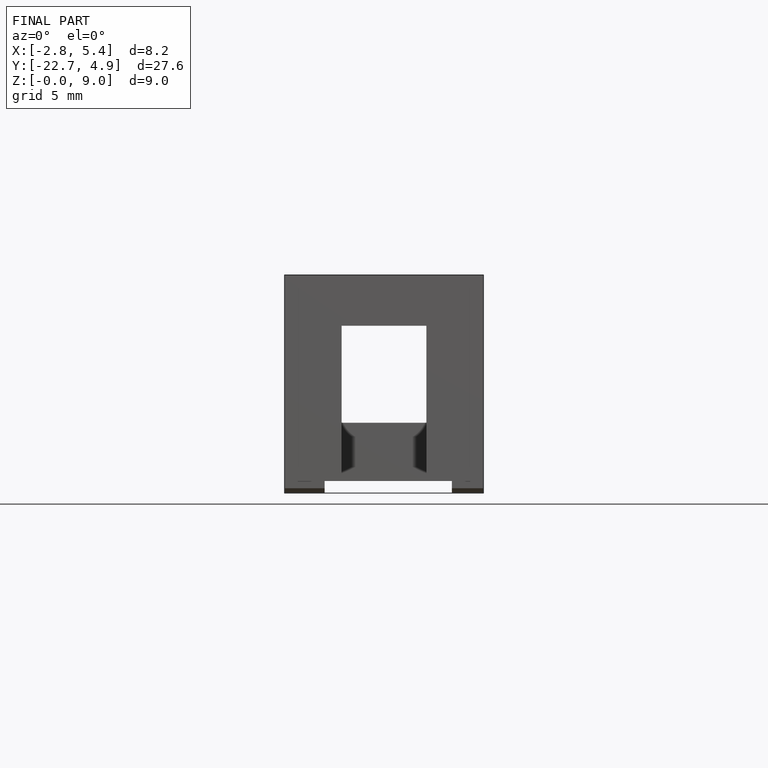
[diagram: finished part — front view with bounding-box wireframe]
